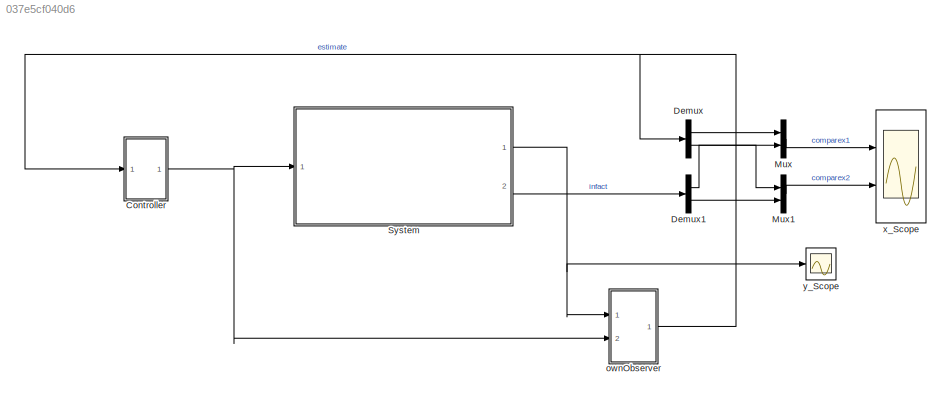
MODEL slx_037e5cf040d6
KIND model
CONFIG AbsTol = auto
CONFIG EnableMultiTasking = off
CONFIG FixedStep = auto
CONFIG MaxStep = 1e-3
CONFIG MinStep = auto
CONFIG RelTol = 1e-3
CONFIG SampleTimeConstraint = Unconstrained
CONFIG SolverName = ode113
CONFIG StartTime = 0.0
CONFIG StopTime = 10
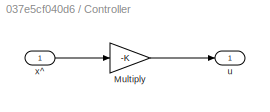
BLOCK [SubSystem] Controller
  Ports = [1, 1]
  RequestExecContextInheritance = off
BLOCK [Gain] Controller/Multiply
  Gain = -K
  Multiplication = Matrix(K*u)
BLOCK [Outport] Controller/u
BLOCK [Inport] Controller/x^
BLOCK [Demux] Demux
  Outputs = 2
  Ports = [1, 2]
BLOCK [Demux] Demux1
  Outputs = 2
  Ports = [1, 2]
BLOCK [Mux] Mux
  DisplayOption = bar
  Inputs = 2
  Ports = [2, 1]
BLOCK [Mux] Mux1
  DisplayOption = bar
  Inputs = 2
  Ports = [2, 1]
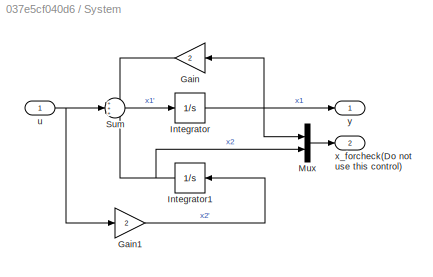
BLOCK [SubSystem] System
  Ports = [1, 2]
  RequestExecContextInheritance = off
BLOCK [Gain] System/Gain
  Gain = 2
  NameLocation = top
BLOCK [Gain] System/Gain1
  Gain = 2
BLOCK [Integrator] System/Integrator
  InitialCondition = 3
  Ports = [1, 1]
BLOCK [Integrator] System/Integrator1
  InitialCondition = 5
  NameLocation = top
  Ports = [1, 1]
BLOCK [Mux] System/Mux
  DisplayOption = bar
  Inputs = 2
  Ports = [2, 1]
BLOCK [Sum] System/Sum
  Inputs = +++
  Ports = [3, 1]
BLOCK [Inport] System/u
  NameLocation = top
BLOCK [Outport] System/x_forcheck(Do not use this control)
  Port = 2
BLOCK [Outport] System/y
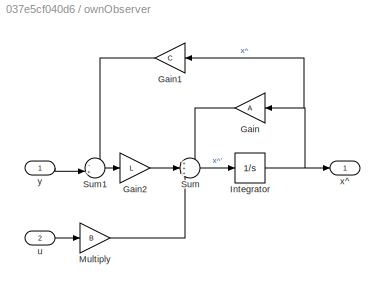
BLOCK [SubSystem] ownObserver
  Ports = [2, 1]
  RequestExecContextInheritance = off
BLOCK [Gain] ownObserver/Gain
  Gain = A
  Multiplication = Matrix(K*u)
  NameLocation = top
BLOCK [Gain] ownObserver/Gain1
  Gain = C
  Multiplication = Matrix(K*u)
  NameLocation = top
BLOCK [Gain] ownObserver/Gain2
  Gain = L
  Multiplication = Matrix(K*u)
BLOCK [Integrator] ownObserver/Integrator
  Ports = [1, 1]
BLOCK [Gain] ownObserver/Multiply
  Gain = B
  Multiplication = Matrix(K*u)
BLOCK [Sum] ownObserver/Sum
  Inputs = +++
  Ports = [3, 1]
BLOCK [Sum] ownObserver/Sum1
  Inputs = -+|
  Ports = [2, 1]
BLOCK [Inport] ownObserver/u
  Port = 2
BLOCK [Outport] ownObserver/x^
BLOCK [Inport] ownObserver/y
BLOCK [Scope] x_Scope
  Floating = off
  NumInputPorts = 2
  Ports = [2]
  ScopeSpecificationString = Simulink.scopes.TimeScopeBlockCfg('CurrentConfiguration', extmgr.ConfigurationSet(extmgr.Configuration('Core','General UI',true),extmgr.Configuration('Core','Source UI',true),extmgr.Configuration('Sources','WiredSimulink',true),extmgr.Configuration('Visuals','Time Domain',true,'SerializedDisplays',{struct('MinYLimReal','-1.88161','MaxYLimReal','5.72031','YLabelReal','','MinYLimMag','0.00000','MaxY...<+2359ch>
BLOCK [Scope] y_Scope
  Floating = off
  NumInputPorts = 1
  Ports = [1]
  ScopeSpecificationString = Simulink.scopes.TimeScopeBlockCfg('CurrentConfiguration', extmgr.ConfigurationSet(extmgr.Configuration('Core','General UI',true),extmgr.Configuration('Core','Source UI',true),extmgr.Configuration('Sources','WiredSimulink',true,'DataLoggingVariableName','ScopeData1'),extmgr.Configuration('Visuals','Time Domain',true,'SerializedDisplays',{struct('MinYLimReal','-1.88161','MaxYLimReal','5.72031','YLab...<+1446ch>
LINE Controller/Multiply:1 -> Controller/u:1
LINE Controller/x^:1 -> Controller/Multiply:1
NET Controller:1 -> System:1, ownObserver:2
LINE Demux1:1 -> Mux:2
LINE Demux1:2 -> Mux1:2
LINE Demux:1 -> Mux:1
LINE Demux:2 -> Mux1:1
LINE Mux1:1 -> x_Scope:2
LINE Mux:1 -> x_Scope:1
LINE System/Gain1:1 -> System/Integrator1:1
LINE System/Gain:1 -> System/Sum:1
NET System/Integrator1:1 -> System/Mux:2, System/Sum:3
NET System/Integrator:1 -> System/Gain:1, System/Mux:1, System/y:1
LINE System/Mux:1 -> System/x_forcheck(Do not use this control):1
LINE System/Sum:1 -> System/Integrator:1
NET System/u:1 -> System/Gain1:1, System/Sum:2
NET System:1 -> ownObserver:1, y_Scope:1
LINE System:2 -> Demux1:1
LINE ownObserver/Gain1:1 -> ownObserver/Sum1:1
LINE ownObserver/Gain2:1 -> ownObserver/Sum:2
LINE ownObserver/Gain:1 -> ownObserver/Sum:1
NET ownObserver/Integrator:1 -> ownObserver/Gain1:1, ownObserver/Gain:1, ownObserver/x^:1
LINE ownObserver/Multiply:1 -> ownObserver/Sum:3
LINE ownObserver/Sum1:1 -> ownObserver/Gain2:1
LINE ownObserver/Sum:1 -> ownObserver/Integrator:1
LINE ownObserver/u:1 -> ownObserver/Multiply:1
LINE ownObserver/y:1 -> ownObserver/Sum1:2
NET ownObserver:1 -> Controller:1, Demux:1
note: NET lines group one-source signal fan-out (src -> all destinations, sorted); 1:1 wires keep LINE
